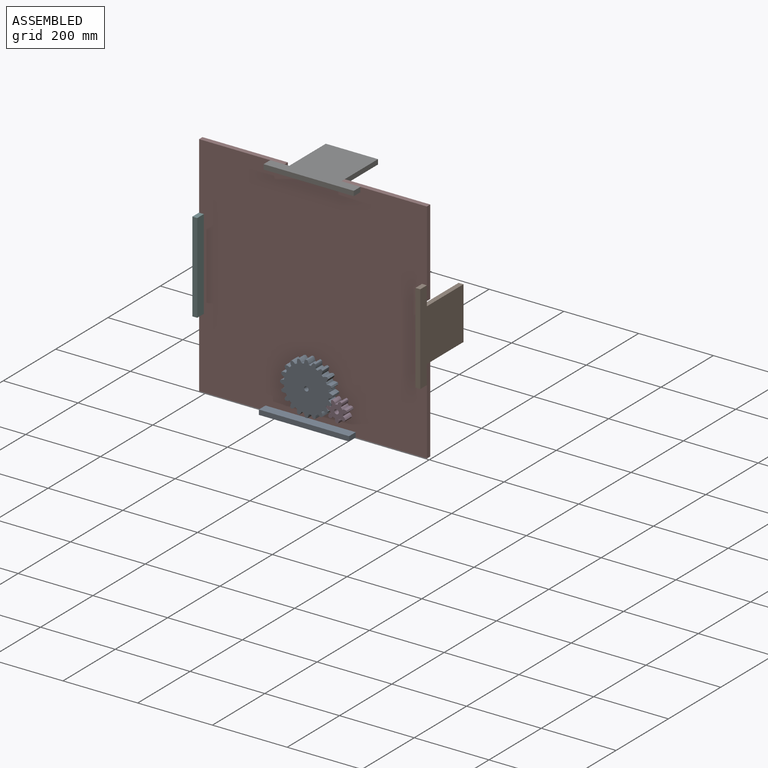
[diagram: assembled view]
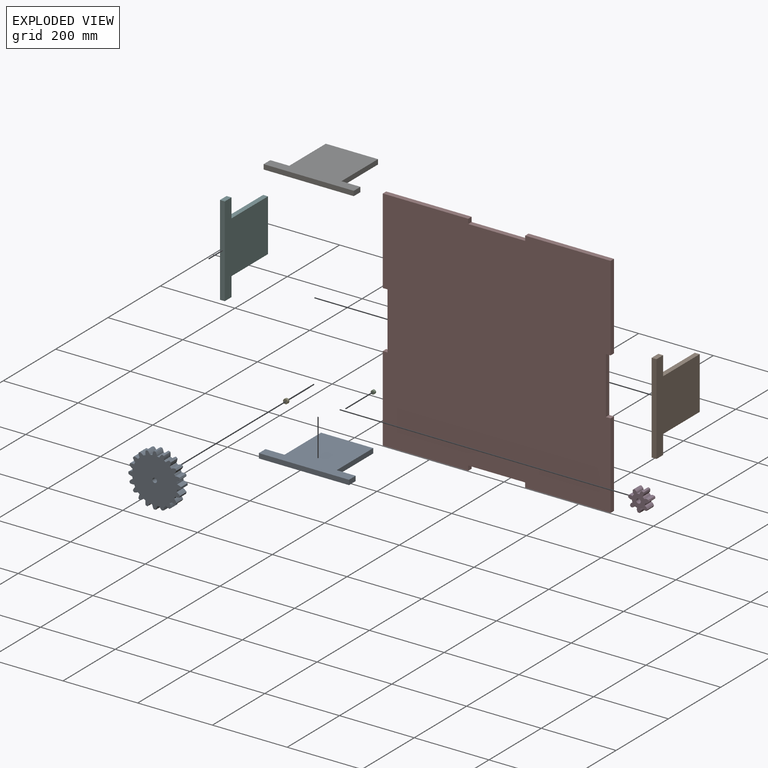
[diagram: exploded view]
GUIDED TOUR — MATED ASSEMBLY (Onshape document 7bbe39c81c4237c6e1a1eeca, AutoMate assembly 7bbe39c81c4237c6e1a1eeca_2d4af777175b77cccae2ca65_cfdbb7cd15bb9fad2b59fb86_default)

This assembly has 9 components, labeled P0..P8 below (a component is one placed occurrence of a part; the same part can appear more than once), held together by 6 mates. A mate is a constraint between two components; its type names the relative motion it leaves free:
  PLANAR — leaves sliding in the plane through the listed point (normal = the listed direction) and rotation about that normal free.
Axis/direction vectors are unit vectors and 'through' points are millimeter coordinates, both in the assembly's world frame.

MATES
  1. PLANAR "Planar 3": P1 <-> P7, direction (0.000, 1.000, 0.000) through (331.79, -6.48, -80.29) mm
  2. PLANAR "Planar 6": P3 <-> P2, direction (0.000, 1.000, 0.000) through (114.27, -6.48, -245.90) mm
  3. PLANAR "Planar 4": P8 <-> P7, direction (0.000, 1.000, 0.000) through (-42.86, -6.48, -302.54) mm
  4. PLANAR "Planar 2": P6 <-> P7, direction (0.000, 1.000, 0.000) through (109.54, -6.48, 294.36) mm
  5. PLANAR "Planar 1": P5 <-> P7, direction (0.000, 1.000, 0.000) through (-265.11, -6.48, 72.11) mm
  6. PLANAR "Planar 5": P0 <-> P4, direction (0.000, 1.000, 0.000) through (33.34, -6.48, -212.29) mm

ASSEMBLY ORDER
  1. P6 — the base component [order verified]
  2. P5 [order verified]
  3. P7 [order verified]
  4. P8 [order verified]
  5. P1 [order verified]
  6. P4 [order verified]
  7. P2 [order verified]
  8. P3 [order verified]
  9. P0 [order verified]
(P1, P8 verified with a relaxed clearance tolerance: the source model stores slight part interference there.)
Order-tag legend:
  [order verified] — this step's position reverses a verified removal order: the component was checked to insert without passing through the ones already placed.

Of the 9 components, 1 carries the full construction recipe — the FeatureScript program that regenerates the part's solid from scratch; the rest are supplied as boundary geometry only.
Each toured component is shown spotlighted twice — in the assembled view, then in the exploded view, where a leader line traces a displaced component back to its assembled socket (saturated green if recipe-attached, orange if geometry-only; every other component desaturated gray) — followed by its recipe or geometry summary and the mates that hold it.
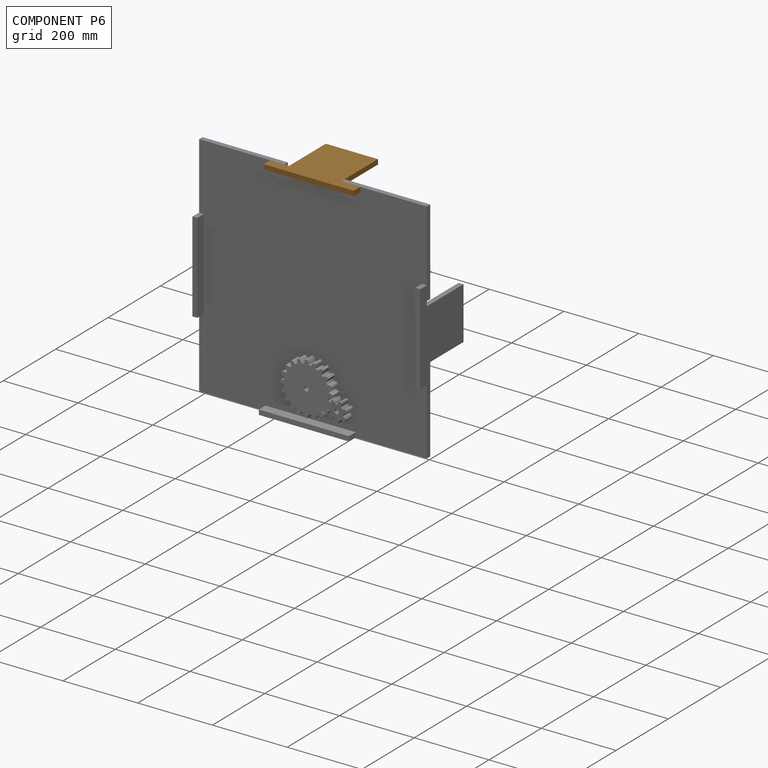
[diagram: component P6 — assembled]
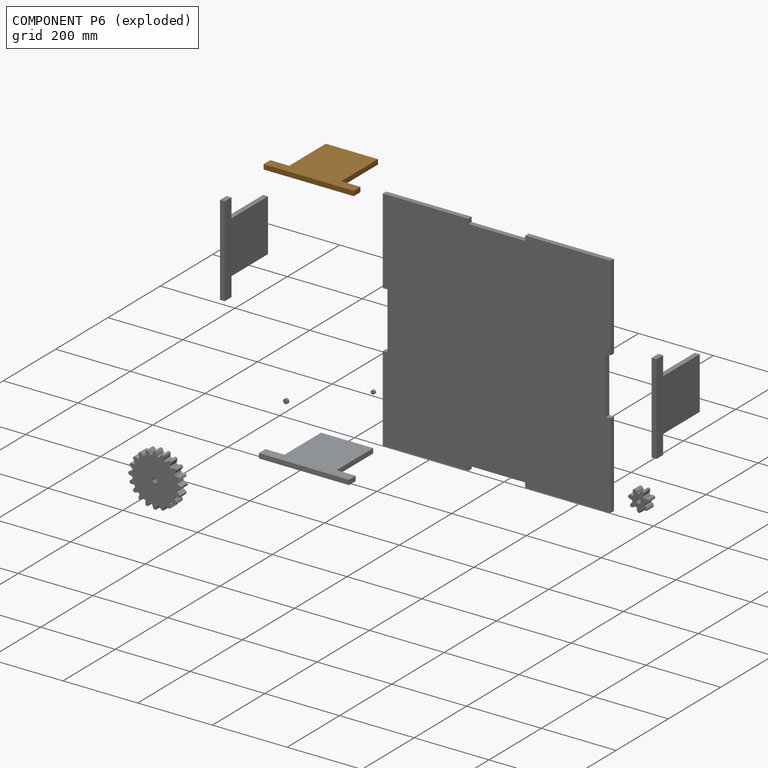
[diagram: component P6 — exploded]
COMPONENT P6 — geometry summary (no construction recipe available for this part):
  bounding box: 241.3 x 165.1 x 13.0 mm
  B-rep topology: 1 solid, 10 faces, 48 edges
  volume: 332207 mm^3 (64% of its bounding box)
  symmetry: 2-fold rotationally symmetric about the z axis; mirror-symmetric across its x mid-plane, y mid-plane
Held by: PLANAR mate "Planar 2" to P7.
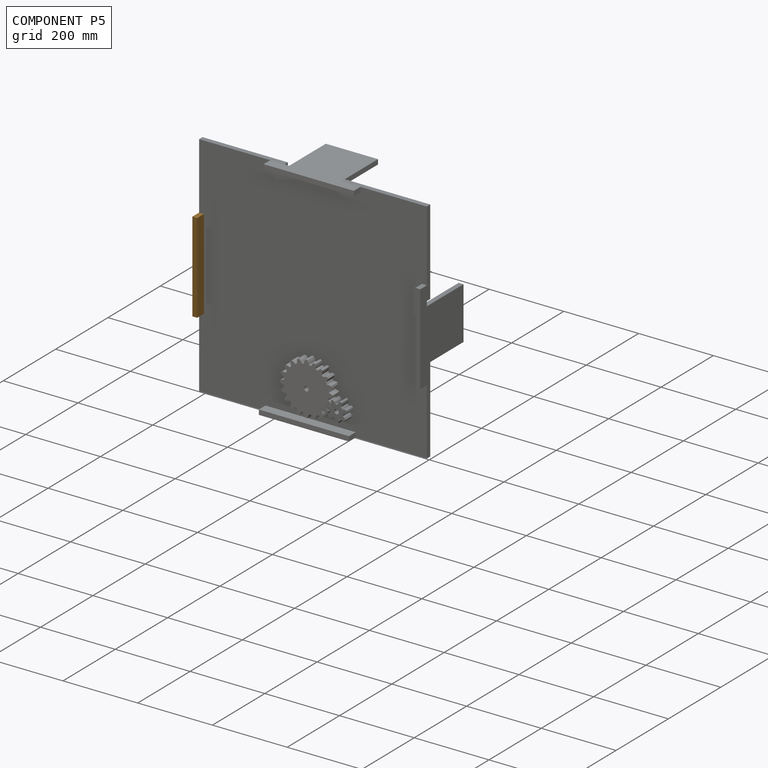
[diagram: component P5 — assembled]
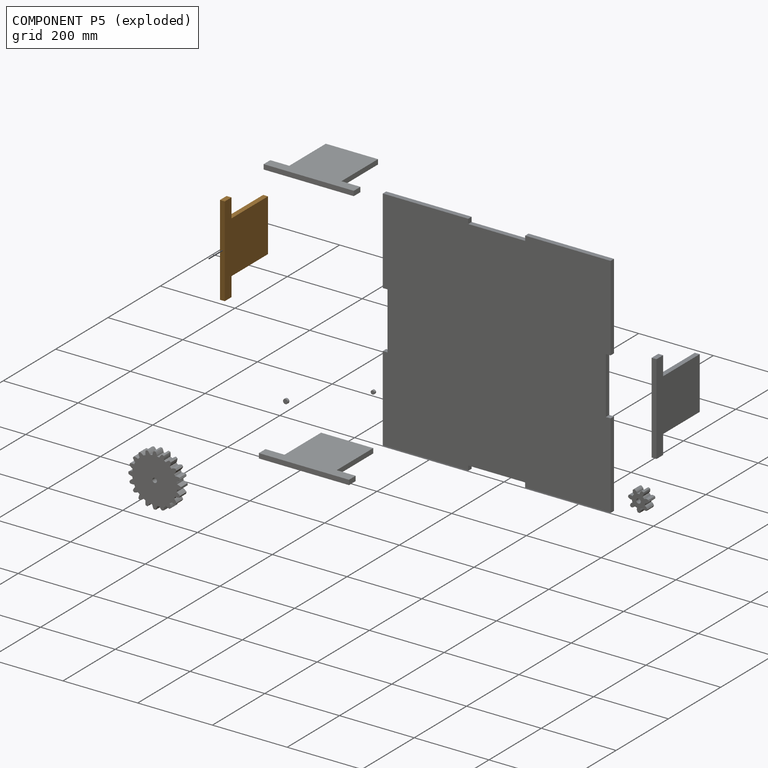
[diagram: component P5 — exploded]
COMPONENT P5 — geometry summary (no construction recipe available for this part):
  bounding box: 241.3 x 165.1 x 13.0 mm
  B-rep topology: 1 solid, 10 faces, 48 edges
  volume: 332207 mm^3 (64% of its bounding box)
  symmetry: 2-fold rotationally symmetric about the z axis; mirror-symmetric across its x mid-plane, y mid-plane
Held by: PLANAR mate "Planar 1" to P7.
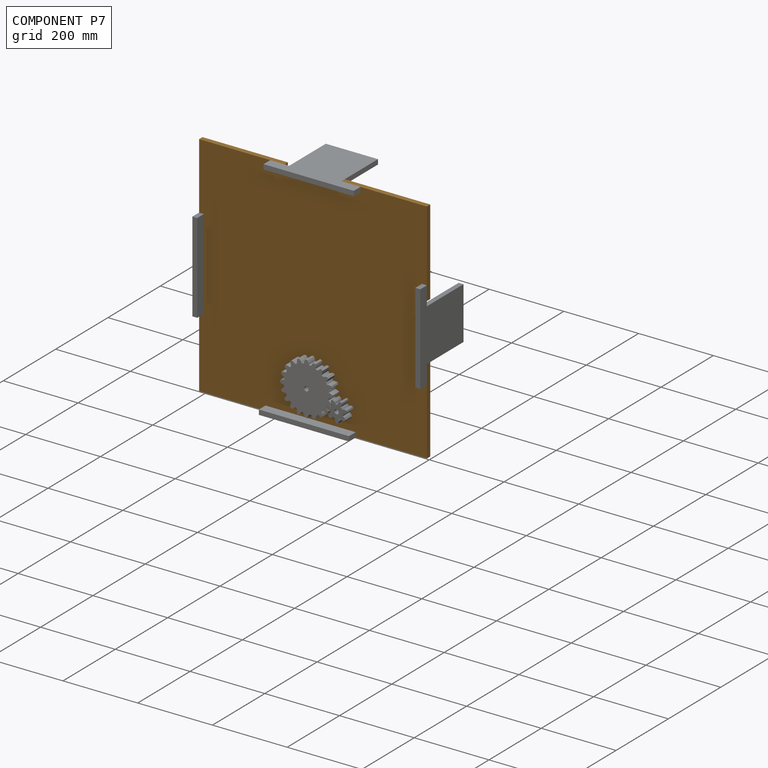
[diagram: component P7 — assembled]
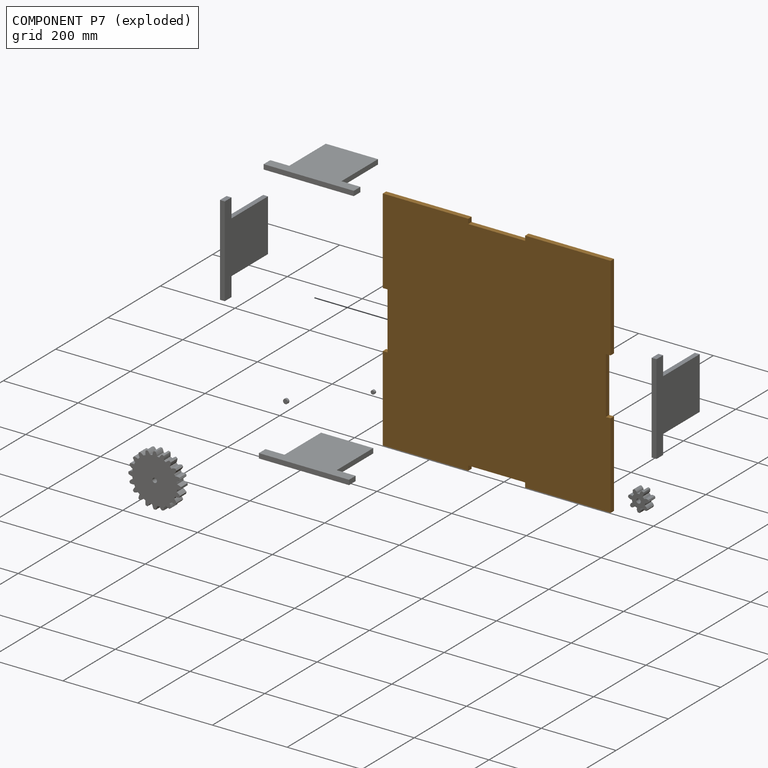
[diagram: component P7 — exploded]
COMPONENT P7 — geometry summary (no construction recipe available for this part):
  bounding box: 609.6 x 609.6 x 13.0 mm
  B-rep topology: 1 solid, 22 faces, 120 edges
  volume: 4713575 mm^3 (98% of its bounding box)
  symmetry: 2-fold rotationally symmetric about the x axis; 4-fold rotationally symmetric about the y axis; 2-fold rotationally symmetric about the z axis; mirror-symmetric across its x mid-plane, y mid-plane, z mid-plane
Held by: PLANAR mate "Planar 3" to P1; PLANAR mate "Planar 4" to P8; PLANAR mate "Planar 2" to P6; PLANAR mate "Planar 1" to P5.
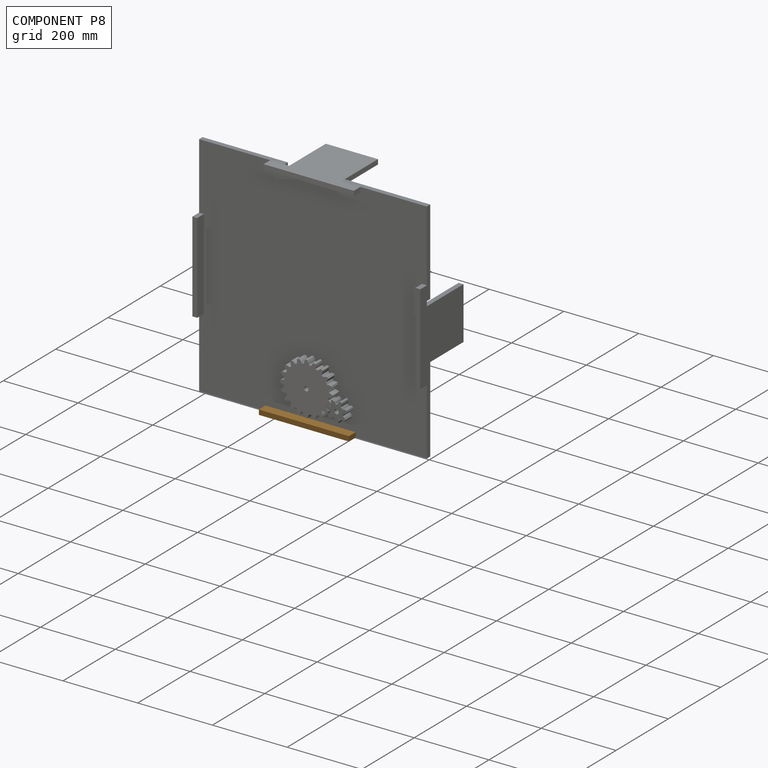
[diagram: component P8 — assembled]
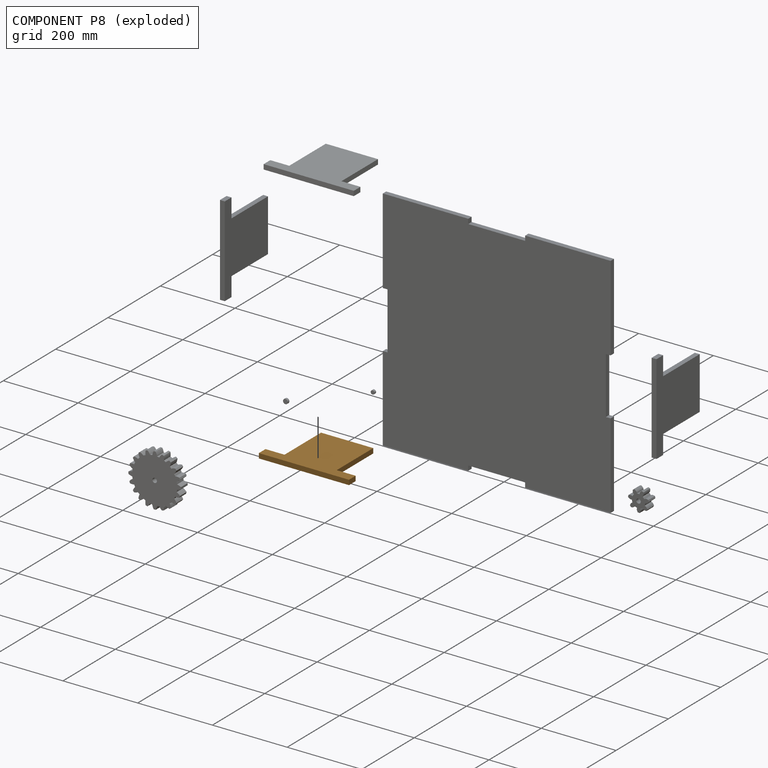
[diagram: component P8 — exploded]
COMPONENT P8 — geometry summary (no construction recipe available for this part):
  bounding box: 241.3 x 165.1 x 13.0 mm
  B-rep topology: 1 solid, 10 faces, 48 edges
  volume: 332207 mm^3 (64% of its bounding box)
  symmetry: 2-fold rotationally symmetric about the z axis; mirror-symmetric across its x mid-plane, y mid-plane
Held by: PLANAR mate "Planar 4" to P7.
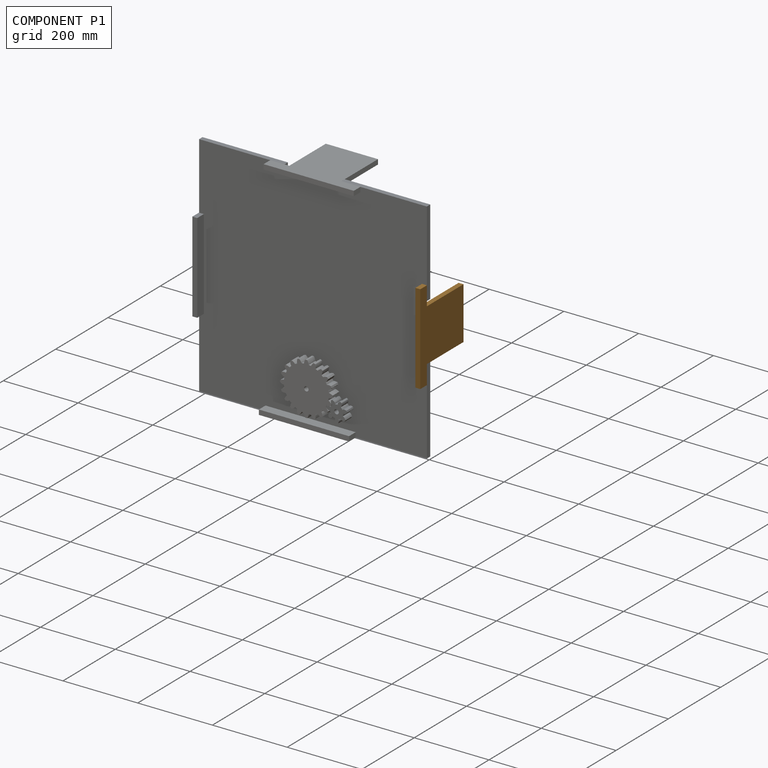
[diagram: component P1 — assembled]
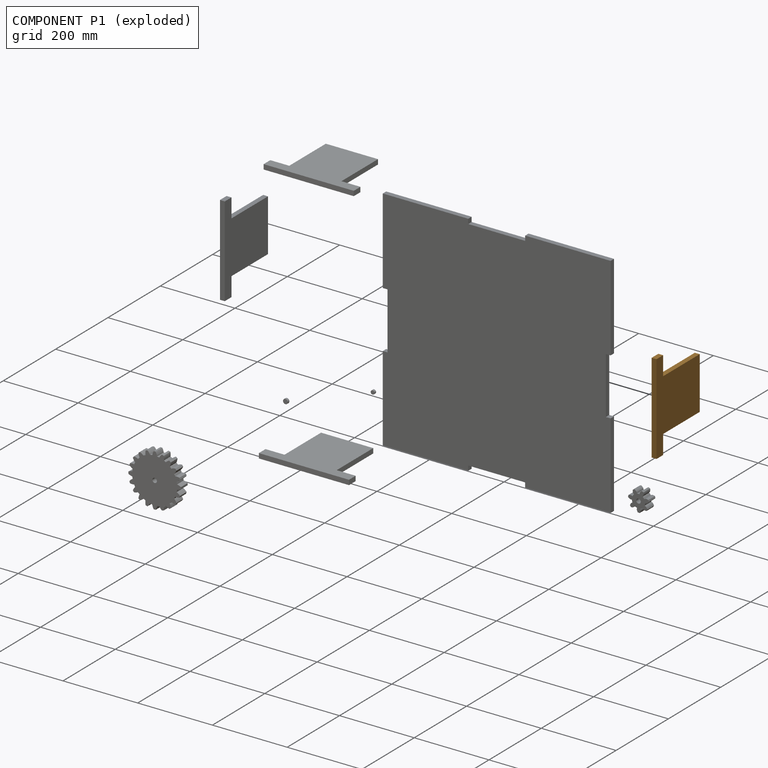
[diagram: component P1 — exploded]
COMPONENT P1 — geometry summary (no construction recipe available for this part):
  bounding box: 241.3 x 165.1 x 13.0 mm
  B-rep topology: 1 solid, 10 faces, 48 edges
  volume: 332207 mm^3 (64% of its bounding box)
  symmetry: 2-fold rotationally symmetric about the z axis; mirror-symmetric across its x mid-plane, y mid-plane
Held by: PLANAR mate "Planar 3" to P7.
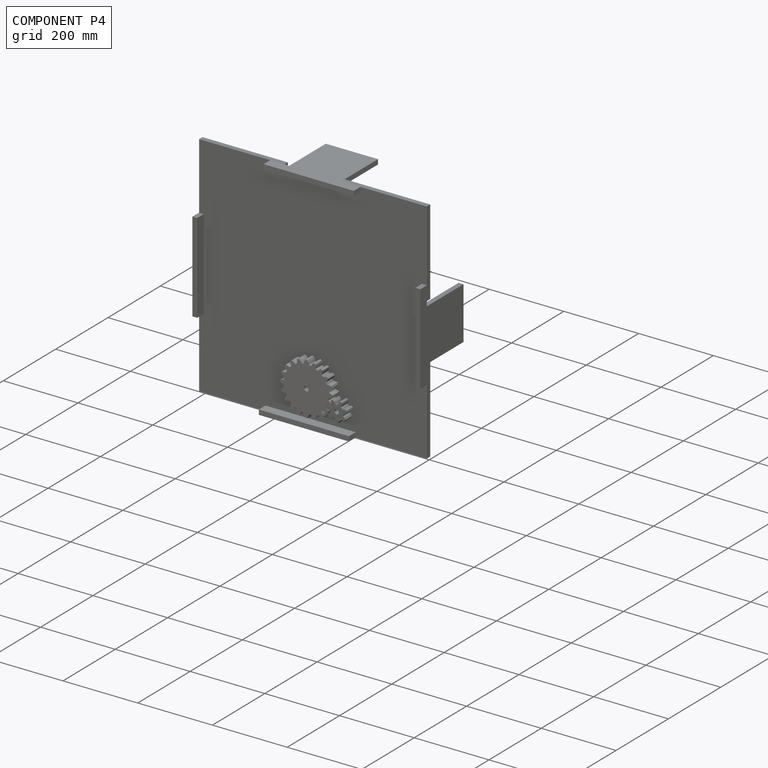
[diagram: component P4 — assembled]
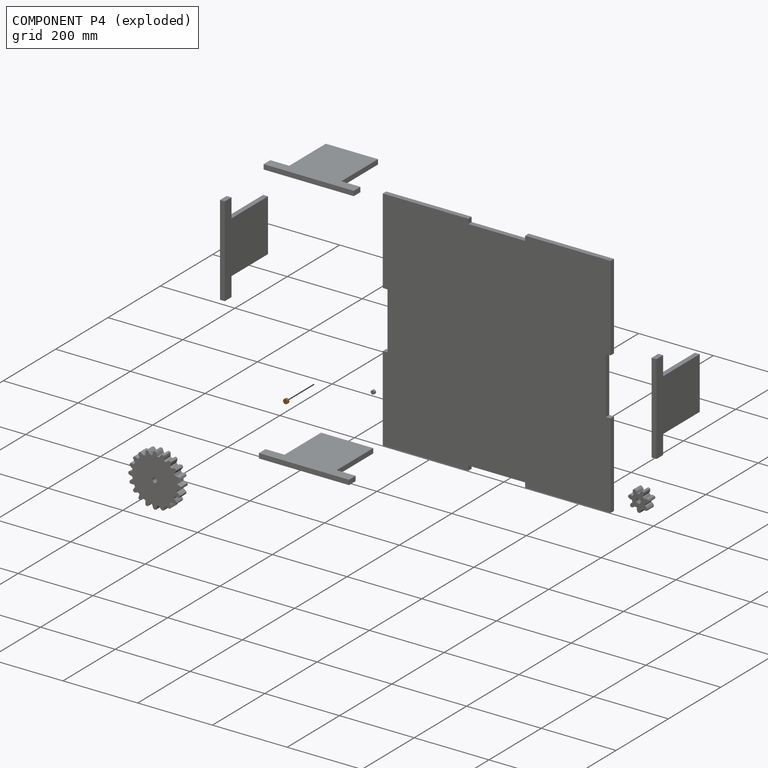
[diagram: component P4 — exploded]
COMPONENT P4 — geometry summary (no construction recipe available for this part):
  bounding box: 12.7 x 12.7 x 6.4 mm
  B-rep topology: 1 solid, 3 faces, 6 edges
  volume: 804 mm^3 (79% of its bounding box)
  symmetry: 2-fold rotationally symmetric about the x axis; revolution-symmetric about the y axis through its bounding-box center; 2-fold rotationally symmetric about the z axis; mirror-symmetric across its x mid-plane, y mid-plane, z mid-plane
Held by: PLANAR mate "Planar 5" to P0.
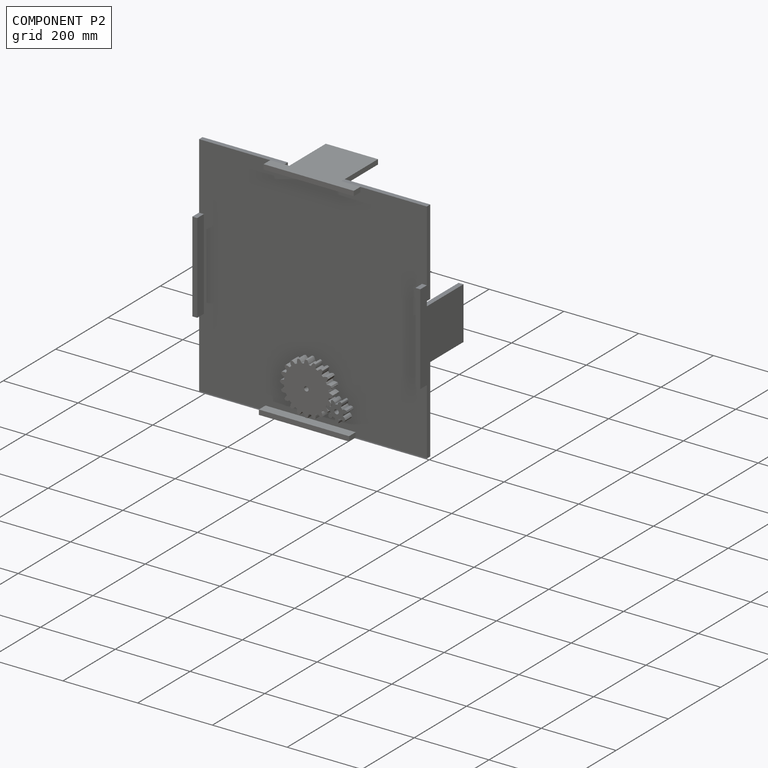
[diagram: component P2 — assembled]
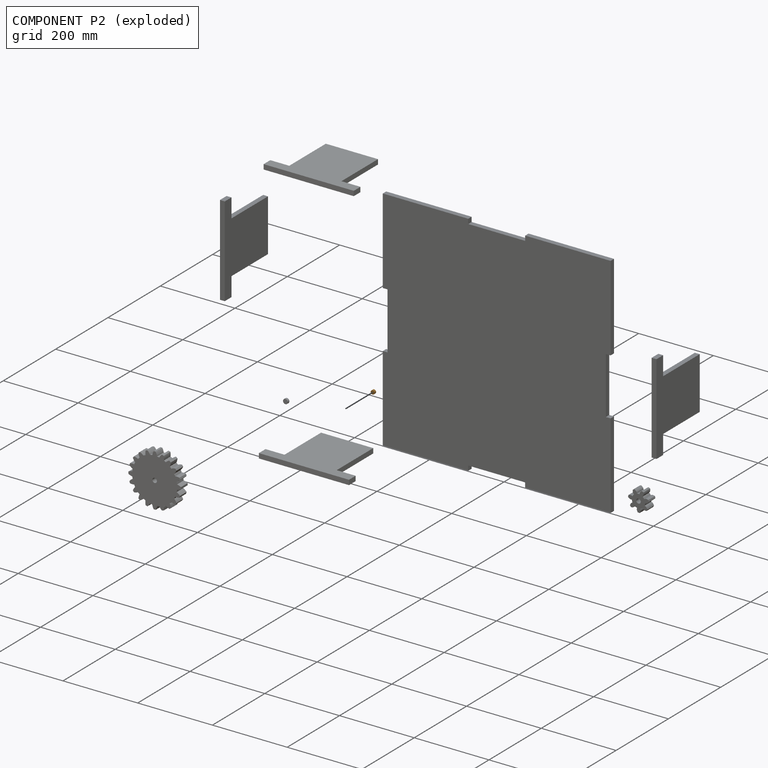
[diagram: component P2 — exploded]
COMPONENT P2 — geometry summary (no construction recipe available for this part):
  bounding box: 10.2 x 10.2 x 6.4 mm
  B-rep topology: 1 solid, 3 faces, 6 edges
  volume: 515 mm^3 (79% of its bounding box)
  symmetry: 2-fold rotationally symmetric about the x axis; revolution-symmetric about the y axis through its bounding-box center; 2-fold rotationally symmetric about the z axis; mirror-symmetric across its x mid-plane, y mid-plane, z mid-plane
Held by: PLANAR mate "Planar 6" to P3.
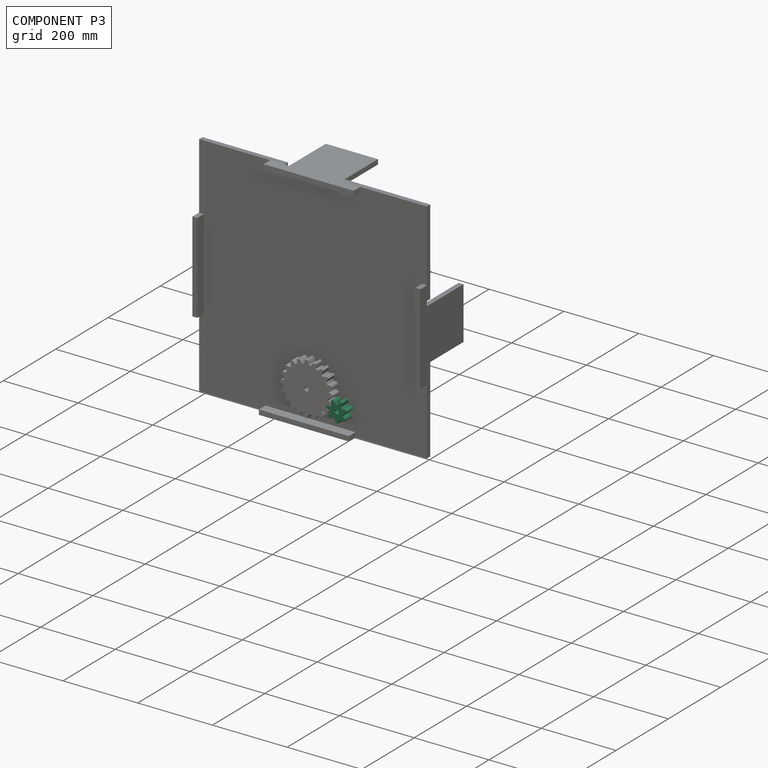
[diagram: component P3 — assembled]
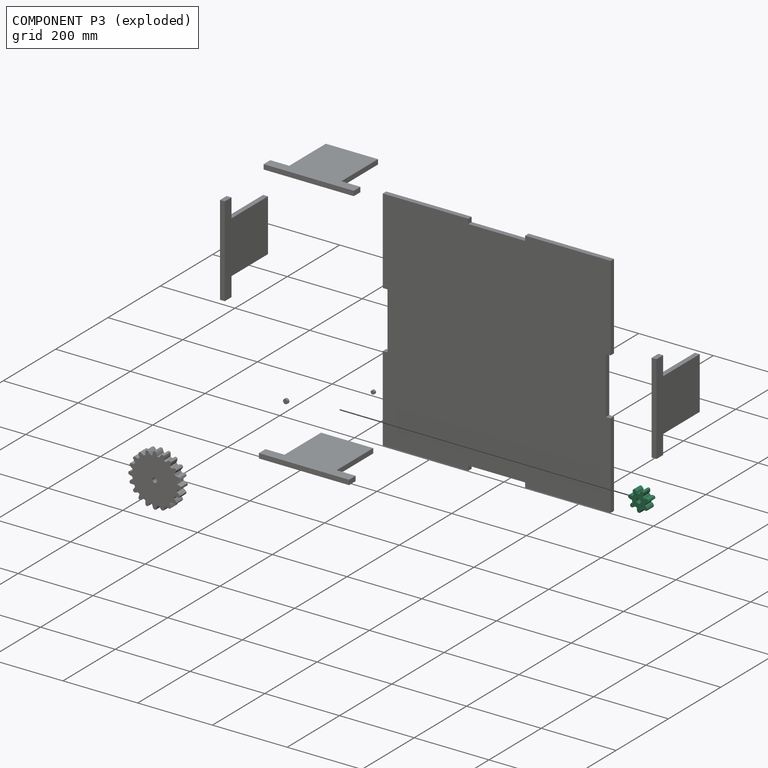
[diagram: component P3 — exploded]
COMPONENT P3 — recipe-attached (CADFS 00361780, mesh-verified: the recipe's output STEP matches this component's geometry to below the mesh-comparison resolution (tessellation chordal tolerance ~0.122 mm)).
Held by: PLANAR mate "Planar 6" to P2.
Construction recipe (FeatureScript — the CAD program that rebuilds this solid; sketch coordinates are in the units given by the * unit suffixes, e.g. mm):

FeatureScript 1511;
import(path : "onshape/std/geometry.fs", version : "1511.0");
import(path : "onshape/std/common.fs", version : "1511.0");
const mm = millimeter;
const VERTEX = EntityType.VERTEX;
const EDGE = EntityType.EDGE;
const FACE = EntityType.FACE;
const BODY = EntityType.BODY;
function v(x, y){return vector(x, y);}
function OD(order){return orderDisambiguation(order);}
function OSD(set){return originalSetDisambiguation(set);}
function TD(topology){return topologyDisambiguation(topology);}
function TDD(query){return trueDependencyDisambiguation(query);}
function sQuery(a, b, c) {return sketchEntityQuery(a, b, c);}

annotation { "Feature Type Name" : "Feature", "Feature Type Description" : "" }
export const myFeature = defineFeature(function(context is Context, id is Id, definition is map)
    precondition{}
    {
        {
            var Q0;
            Q0=qCreatedBy(makeId("Front.planeOp"),FACE);
            var sketch = newSketch(context, id + "F0", { "sketchPlane" : qUnion([Q0])});
            skLineSegment(sketch, "E0", {"start": v(-98.04, 127.68) * mm, "end": v(-97.87, 127.68) * mm});
            skLineSegment(sketch, "E1", {"start": v(5.93, 25.9) * mm, "end": v(5.93, 25.45) * mm});
            skLineSegment(sketch, "E2", {"start": v(5.93, 25.45) * mm, "end": v(5.62, 24.07) * mm});
            skLineSegment(sketch, "E3", {"start": v(5.62, 24.07) * mm, "end": v(4.93, 22.63) * mm});
            skLineSegment(sketch, "E4", {"start": v(4.93, 22.63) * mm, "end": v(4.74, 22.35) * mm});
            skLineSegment(sketch, "E5", {"start": v(4.74, 22.35) * mm, "end": v(4.55, 22.08) * mm});
            skLineSegment(sketch, "E6", {"start": v(4.55, 22.08) * mm, "end": v(3.4, 21) * mm});
            skLineSegment(sketch, "E7", {"start": v(3.4, 21) * mm, "end": v(2, 20.26) * mm});
            skLineSegment(sketch, "E8", {"start": v(2, 20.26) * mm, "end": v(1.7, 20.15) * mm});
            skLineSegment(sketch, "E9", {"start": v(1.7, 20.15) * mm, "end": v(1.37, 20.05) * mm});
            skLineSegment(sketch, "E10", {"start": v(1.37, 20.05) * mm, "end": v(-0.17, 19.83) * mm});
            skLineSegment(sketch, "E11", {"start": v(-0.17, 19.83) * mm, "end": v(-1.72, 20.05) * mm});
            skLineSegment(sketch, "E12", {"start": v(-1.72, 20.05) * mm, "end": v(-2.03, 20.15) * mm});
            skLineSegment(sketch, "E13", {"start": v(-2.03, 20.15) * mm, "end": v(-2.35, 20.26) * mm});
            skLineSegment(sketch, "E14", {"start": v(-2.35, 20.26) * mm, "end": v(-3.75, 21) * mm});
            skLineSegment(sketch, "E15", {"start": v(-3.75, 21) * mm, "end": v(-4.9, 22.08) * mm});
            skLineSegment(sketch, "E16", {"start": v(-4.9, 22.08) * mm, "end": v(-5.08, 22.35) * mm});
            skLineSegment(sketch, "E17", {"start": v(-5.08, 22.35) * mm, "end": v(-5.27, 22.63) * mm});
            skLineSegment(sketch, "E18", {"start": v(-5.27, 22.63) * mm, "end": v(-5.96, 24.07) * mm});
            skLineSegment(sketch, "E19", {"start": v(-5.96, 24.07) * mm, "end": v(-6.27, 25.45) * mm});
            skLineSegment(sketch, "E20", {"start": v(-6.27, 25.45) * mm, "end": v(-6.27, 25.9) * mm});
            skLineSegment(sketch, "E21", {"start": v(-6.27, 25.9) * mm, "end": v(-6.27, 26.37) * mm});
            skLineSegment(sketch, "E22", {"start": v(-6.27, 26.37) * mm, "end": v(-5.96, 27.75) * mm});
            skLineSegment(sketch, "E23", {"start": v(-5.96, 27.75) * mm, "end": v(-5.27, 29.2) * mm});
            skLineSegment(sketch, "E24", {"start": v(-5.27, 29.2) * mm, "end": v(-5.08, 29.46) * mm});
            skLineSegment(sketch, "E25", {"start": v(-5.08, 29.46) * mm, "end": v(-4.9, 29.74) * mm});
            skLineSegment(sketch, "E26", {"start": v(-4.9, 29.74) * mm, "end": v(-3.75, 30.82) * mm});
            skLineSegment(sketch, "E27", {"start": v(-3.75, 30.82) * mm, "end": v(-2.35, 31.56) * mm});
            skLineSegment(sketch, "E28", {"start": v(-2.35, 31.56) * mm, "end": v(-2.03, 31.67) * mm});
            skLineSegment(sketch, "E29", {"start": v(-2.03, 31.67) * mm, "end": v(-1.72, 31.77) * mm});
            skLineSegment(sketch, "E30", {"start": v(-1.72, 31.77) * mm, "end": v(-0.17, 31.98) * mm});
            skLineSegment(sketch, "E31", {"start": v(-0.17, 31.98) * mm, "end": v(1.37, 31.77) * mm});
            skLineSegment(sketch, "E32", {"start": v(1.37, 31.77) * mm, "end": v(1.7, 31.67) * mm});
            skLineSegment(sketch, "E33", {"start": v(1.7, 31.67) * mm, "end": v(2, 31.56) * mm});
            skLineSegment(sketch, "E34", {"start": v(2, 31.56) * mm, "end": v(3.4, 30.82) * mm});
            skLineSegment(sketch, "E35", {"start": v(3.4, 30.82) * mm, "end": v(4.55, 29.74) * mm});
            skLineSegment(sketch, "E36", {"start": v(4.55, 29.74) * mm, "end": v(4.74, 29.46) * mm});
            skLineSegment(sketch, "E37", {"start": v(4.74, 29.46) * mm, "end": v(4.93, 29.2) * mm});
            skLineSegment(sketch, "E38", {"start": v(4.93, 29.2) * mm, "end": v(5.62, 27.75) * mm});
            skLineSegment(sketch, "E39", {"start": v(5.62, 27.75) * mm, "end": v(5.93, 26.37) * mm});
            skLineSegment(sketch, "E40", {"start": v(5.93, 26.37) * mm, "end": v(5.93, 25.9) * mm});
            skLineSegment(sketch, "E41", {"start": v(15.83, 18.2) * mm, "end": v(17.02, 21.42) * mm});
            skLineSegment(sketch, "E42", {"start": v(17.02, 21.42) * mm, "end": v(17.44, 21.34) * mm});
            skLineSegment(sketch, "E43", {"start": v(17.44, 21.34) * mm, "end": v(17.95, 21.17) * mm});
            skLineSegment(sketch, "E44", {"start": v(17.95, 21.17) * mm, "end": v(18.46, 21) * mm});
            skLineSegment(sketch, "E45", {"start": v(18.46, 21) * mm, "end": v(18.97, 20.91) * mm});
            skLineSegment(sketch, "E46", {"start": v(18.97, 20.91) * mm, "end": v(19.47, 20.83) * mm});
            skLineSegment(sketch, "E47", {"start": v(19.47, 20.83) * mm, "end": v(19.98, 20.66) * mm});
            skLineSegment(sketch, "E48", {"start": v(19.98, 20.66) * mm, "end": v(20.49, 20.66) * mm});
            skLineSegment(sketch, "E49", {"start": v(20.49, 20.66) * mm, "end": v(21, 20.66) * mm});
            skLineSegment(sketch, "E50", {"start": v(21, 20.66) * mm, "end": v(21.6, 20.74) * mm});
            skLineSegment(sketch, "E51", {"start": v(21.6, 20.74) * mm, "end": v(22.1, 20.83) * mm});
            skLineSegment(sketch, "E52", {"start": v(22.1, 20.83) * mm, "end": v(22.69, 20.91) * mm});
            skLineSegment(sketch, "E53", {"start": v(22.69, 20.91) * mm, "end": v(23.2, 21.08) * mm});
            skLineSegment(sketch, "E54", {"start": v(23.2, 21.08) * mm, "end": v(23.8, 21.34) * mm});
            skLineSegment(sketch, "E55", {"start": v(23.8, 21.34) * mm, "end": v(24.3, 21.5) * mm});
            skLineSegment(sketch, "E56", {"start": v(24.3, 21.5) * mm, "end": v(24.9, 21.84) * mm});
            skLineSegment(sketch, "E57", {"start": v(24.9, 21.84) * mm, "end": v(25.48, 22.1) * mm});
            skLineSegment(sketch, "E58", {"start": v(25.48, 22.1) * mm, "end": v(26.08, 22.44) * mm});
            skLineSegment(sketch, "E59", {"start": v(26.08, 22.44) * mm, "end": v(26.59, 22.78) * mm});
            skLineSegment(sketch, "E60", {"start": v(26.59, 22.78) * mm, "end": v(27.18, 23.2) * mm});
            skLineSegment(sketch, "E61", {"start": v(27.18, 23.2) * mm, "end": v(27.69, 23.54) * mm});
            skLineSegment(sketch, "E62", {"start": v(27.69, 23.54) * mm, "end": v(27.69, 28.2) * mm});
            skLineSegment(sketch, "E63", {"start": v(27.69, 28.2) * mm, "end": v(27.18, 28.62) * mm});
            skLineSegment(sketch, "E64", {"start": v(27.18, 28.62) * mm, "end": v(26.59, 29.04) * mm});
            skLineSegment(sketch, "E65", {"start": v(26.59, 29.04) * mm, "end": v(26.08, 29.38) * mm});
            skLineSegment(sketch, "E66", {"start": v(26.08, 29.38) * mm, "end": v(25.48, 29.72) * mm});
            skLineSegment(sketch, "E67", {"start": v(25.48, 29.72) * mm, "end": v(24.9, 29.97) * mm});
            skLineSegment(sketch, "E68", {"start": v(24.9, 29.97) * mm, "end": v(24.3, 30.23) * mm});
            skLineSegment(sketch, "E69", {"start": v(24.3, 30.23) * mm, "end": v(23.8, 30.48) * mm});
            skLineSegment(sketch, "E70", {"start": v(23.8, 30.48) * mm, "end": v(23.2, 30.65) * mm});
            skLineSegment(sketch, "E71", {"start": v(23.2, 30.65) * mm, "end": v(22.69, 30.82) * mm});
            skLineSegment(sketch, "E72", {"start": v(22.69, 30.82) * mm, "end": v(22.1, 30.99) * mm});
            skLineSegment(sketch, "E73", {"start": v(22.1, 30.99) * mm, "end": v(21.6, 31.07) * mm});
            skLineSegment(sketch, "E74", {"start": v(21.6, 31.07) * mm, "end": v(21, 31.16) * mm});
            skLineSegment(sketch, "E75", {"start": v(21, 31.16) * mm, "end": v(20.49, 31.16) * mm});
            skLineSegment(sketch, "E76", {"start": v(20.49, 31.16) * mm, "end": v(19.98, 31.16) * mm});
            skLineSegment(sketch, "E77", {"start": v(19.98, 31.16) * mm, "end": v(19.47, 30.99) * mm});
            skLineSegment(sketch, "E78", {"start": v(19.47, 30.99) * mm, "end": v(18.97, 30.82) * mm});
            skLineSegment(sketch, "E79", {"start": v(18.97, 30.82) * mm, "end": v(18.46, 30.73) * mm});
            skLineSegment(sketch, "E80", {"start": v(18.46, 30.73) * mm, "end": v(17.95, 30.65) * mm});
            skLineSegment(sketch, "E81", {"start": v(17.95, 30.65) * mm, "end": v(17.44, 30.48) * mm});
            skLineSegment(sketch, "E82", {"start": v(17.44, 30.48) * mm, "end": v(17.02, 30.31) * mm});
            skLineSegment(sketch, "E83", {"start": v(17.02, 30.31) * mm, "end": v(15.83, 33.61) * mm});
            skLineSegment(sketch, "E84", {"start": v(15.83, 33.61) * mm, "end": v(14.06, 36.5) * mm});
            skLineSegment(sketch, "E85", {"start": v(14.06, 36.5) * mm, "end": v(14.4, 36.83) * mm});
            skLineSegment(sketch, "E86", {"start": v(14.4, 36.83) * mm, "end": v(14.82, 37.17) * mm});
            skLineSegment(sketch, "E87", {"start": v(14.82, 37.17) * mm, "end": v(15.24, 37.42) * mm});
            skLineSegment(sketch, "E88", {"start": v(15.24, 37.42) * mm, "end": v(15.66, 37.76) * mm});
            skLineSegment(sketch, "E89", {"start": v(15.66, 37.76) * mm, "end": v(16.09, 38.02) * mm});
            skLineSegment(sketch, "E90", {"start": v(16.09, 38.02) * mm, "end": v(16.43, 38.35) * mm});
            skLineSegment(sketch, "E91", {"start": v(16.43, 38.35) * mm, "end": v(16.85, 38.78) * mm});
            skLineSegment(sketch, "E92", {"start": v(16.85, 38.78) * mm, "end": v(17.19, 39.2) * mm});
            skLineSegment(sketch, "E93", {"start": v(17.19, 39.2) * mm, "end": v(17.44, 39.62) * mm});
            skLineSegment(sketch, "E94", {"start": v(17.44, 39.62) * mm, "end": v(17.7, 40.13) * mm});
            skLineSegment(sketch, "E95", {"start": v(17.7, 40.13) * mm, "end": v(17.95, 40.64) * mm});
            skLineSegment(sketch, "E96", {"start": v(17.95, 40.64) * mm, "end": v(18.12, 41.23) * mm});
            skLineSegment(sketch, "E97", {"start": v(18.12, 41.23) * mm, "end": v(18.37, 41.74) * mm});
            skLineSegment(sketch, "E98", {"start": v(18.37, 41.74) * mm, "end": v(18.54, 42.33) * mm});
            skLineSegment(sketch, "E99", {"start": v(18.54, 42.33) * mm, "end": v(18.63, 42.93) * mm});
            skLineSegment(sketch, "E100", {"start": v(18.63, 42.93) * mm, "end": v(18.8, 43.6) * mm});
            skLineSegment(sketch, "E101", {"start": v(18.8, 43.6) * mm, "end": v(18.88, 44.2) * mm});
            skLineSegment(sketch, "E102", {"start": v(18.88, 44.2) * mm, "end": v(18.97, 44.87) * mm});
            skLineSegment(sketch, "E103", {"start": v(18.97, 44.87) * mm, "end": v(18.97, 45.55) * mm});
            skLineSegment(sketch, "E104", {"start": v(18.97, 45.55) * mm, "end": v(19.05, 46.23) * mm});
            skLineSegment(sketch, "E105", {"start": v(19.05, 46.23) * mm, "end": v(15.4, 49.1) * mm});
            skLineSegment(sketch, "E106", {"start": v(15.4, 49.1) * mm, "end": v(14.73, 48.94) * mm});
            skLineSegment(sketch, "E107", {"start": v(14.73, 48.94) * mm, "end": v(14.06, 48.77) * mm});
            skLineSegment(sketch, "E108", {"start": v(14.06, 48.77) * mm, "end": v(13.46, 48.51) * mm});
            skLineSegment(sketch, "E109", {"start": v(13.46, 48.51) * mm, "end": v(12.87, 48.26) * mm});
            skLineSegment(sketch, "E110", {"start": v(12.87, 48.26) * mm, "end": v(12.28, 48.1) * mm});
            skLineSegment(sketch, "E111", {"start": v(12.28, 48.1) * mm, "end": v(11.68, 47.75) * mm});
            skLineSegment(sketch, "E112", {"start": v(11.68, 47.75) * mm, "end": v(11.18, 47.5) * mm});
            skLineSegment(sketch, "E113", {"start": v(11.18, 47.5) * mm, "end": v(10.67, 47.16) * mm});
            skLineSegment(sketch, "E114", {"start": v(10.67, 47.16) * mm, "end": v(10.16, 46.82) * mm});
            skLineSegment(sketch, "E115", {"start": v(10.16, 46.82) * mm, "end": v(9.74, 46.48) * mm});
            skLineSegment(sketch, "E116", {"start": v(9.74, 46.48) * mm, "end": v(9.31, 46.14) * mm});
            skLineSegment(sketch, "E117", {"start": v(9.31, 46.14) * mm, "end": v(8.97, 45.72) * mm});
            skLineSegment(sketch, "E118", {"start": v(8.97, 45.72) * mm, "end": v(8.55, 45.3) * mm});
            skLineSegment(sketch, "E119", {"start": v(8.55, 45.3) * mm, "end": v(8.3, 44.87) * mm});
            skLineSegment(sketch, "E120", {"start": v(8.3, 44.87) * mm, "end": v(8.04, 44.45) * mm});
            skLineSegment(sketch, "E121", {"start": v(8.04, 44.45) * mm, "end": v(7.87, 43.94) * mm});
            skLineSegment(sketch, "E122", {"start": v(7.87, 43.94) * mm, "end": v(7.7, 43.52) * mm});
            skLineSegment(sketch, "E123", {"start": v(7.7, 43.52) * mm, "end": v(7.45, 43.01) * mm});
            skLineSegment(sketch, "E124", {"start": v(7.45, 43.01) * mm, "end": v(7.28, 42.59) * mm});
            skLineSegment(sketch, "E125", {"start": v(7.28, 42.59) * mm, "end": v(7.03, 42.08) * mm});
            skLineSegment(sketch, "E126", {"start": v(7.03, 42.08) * mm, "end": v(3.8, 43.18) * mm});
            skLineSegment(sketch, "E127", {"start": v(3.8, 43.18) * mm, "end": v(0.34, 43.6) * mm});
            skLineSegment(sketch, "E128", {"start": v(0.34, 43.6) * mm, "end": v(0.34, 44.11) * mm});
            skLineSegment(sketch, "E129", {"start": v(0.34, 44.11) * mm, "end": v(0.42, 44.62) * mm});
            skLineSegment(sketch, "E130", {"start": v(0.42, 44.62) * mm, "end": v(0.42, 45.13) * mm});
            skLineSegment(sketch, "E131", {"start": v(0.42, 45.13) * mm, "end": v(0.42, 45.64) * mm});
            skLineSegment(sketch, "E132", {"start": v(0.42, 45.64) * mm, "end": v(0.42, 46.14) * mm});
            skLineSegment(sketch, "E133", {"start": v(0.42, 46.14) * mm, "end": v(0.42, 46.65) * mm});
            skLineSegment(sketch, "E134", {"start": v(0.42, 46.65) * mm, "end": v(0.34, 47.16) * mm});
            skLineSegment(sketch, "E135", {"start": v(0.34, 47.16) * mm, "end": v(0.25, 47.67) * mm});
            skLineSegment(sketch, "E136", {"start": v(0.25, 47.67) * mm, "end": v(0.08, 48.26) * mm});
            skLineSegment(sketch, "E137", {"start": v(0.08, 48.26) * mm, "end": v(-0.17, 48.77) * mm});
            skLineSegment(sketch, "E138", {"start": v(-0.17, 48.77) * mm, "end": v(-0.42, 49.28) * mm});
            skLineSegment(sketch, "E139", {"start": v(-0.42, 49.28) * mm, "end": v(-0.68, 49.78) * mm});
            skLineSegment(sketch, "E140", {"start": v(-0.68, 49.78) * mm, "end": v(-1.02, 50.3) * mm});
            skLineSegment(sketch, "E141", {"start": v(-1.02, 50.3) * mm, "end": v(-1.36, 50.8) * mm});
            skLineSegment(sketch, "E142", {"start": v(-1.36, 50.8) * mm, "end": v(-1.78, 51.22) * mm});
            skLineSegment(sketch, "E143", {"start": v(-1.78, 51.22) * mm, "end": v(-2.2, 51.73) * mm});
            skLineSegment(sketch, "E144", {"start": v(-2.2, 51.73) * mm, "end": v(-2.62, 52.24) * mm});
            skLineSegment(sketch, "E145", {"start": v(-2.62, 52.24) * mm, "end": v(-3.05, 52.66) * mm});
            skLineSegment(sketch, "E146", {"start": v(-3.05, 52.66) * mm, "end": v(-3.56, 53.17) * mm});
            skLineSegment(sketch, "E147", {"start": v(-3.56, 53.17) * mm, "end": v(-4.06, 53.6) * mm});
            skLineSegment(sketch, "E148", {"start": v(-4.06, 53.6) * mm, "end": v(-8.64, 52.58) * mm});
            skLineSegment(sketch, "E149", {"start": v(-8.64, 52.58) * mm, "end": v(-8.9, 51.9) * mm});
            skLineSegment(sketch, "E150", {"start": v(-8.9, 51.9) * mm, "end": v(-9.14, 51.3) * mm});
            skLineSegment(sketch, "E151", {"start": v(-9.14, 51.3) * mm, "end": v(-9.4, 50.63) * mm});
            skLineSegment(sketch, "E152", {"start": v(-9.4, 50.63) * mm, "end": v(-9.57, 50.04) * mm});
            skLineSegment(sketch, "E153", {"start": v(-9.57, 50.04) * mm, "end": v(-9.74, 49.44) * mm});
            skLineSegment(sketch, "E154", {"start": v(-9.74, 49.44) * mm, "end": v(-9.9, 48.85) * mm});
            skLineSegment(sketch, "E155", {"start": v(-9.9, 48.85) * mm, "end": v(-10, 48.26) * mm});
            skLineSegment(sketch, "E156", {"start": v(-10, 48.26) * mm, "end": v(-10, 47.67) * mm});
            skLineSegment(sketch, "E157", {"start": v(-10, 47.67) * mm, "end": v(-10.08, 47.07) * mm});
            skLineSegment(sketch, "E158", {"start": v(-10.08, 47.07) * mm, "end": v(-10.08, 46.48) * mm});
            skLineSegment(sketch, "E159", {"start": v(-10.08, 46.48) * mm, "end": v(-10.08, 45.89) * mm});
            skLineSegment(sketch, "E160", {"start": v(-10.08, 45.89) * mm, "end": v(-10, 45.38) * mm});
            skLineSegment(sketch, "E161", {"start": v(-10, 45.38) * mm, "end": v(-9.9, 44.87) * mm});
            skLineSegment(sketch, "E162", {"start": v(-9.9, 44.87) * mm, "end": v(-9.74, 44.37) * mm});
            skLineSegment(sketch, "E163", {"start": v(-9.74, 44.37) * mm, "end": v(-9.48, 43.86) * mm});
            skLineSegment(sketch, "E164", {"start": v(-9.48, 43.86) * mm, "end": v(-9.31, 43.43) * mm});
            skLineSegment(sketch, "E165", {"start": v(-9.31, 43.43) * mm, "end": v(-9.06, 43.01) * mm});
            skLineSegment(sketch, "E166", {"start": v(-9.06, 43.01) * mm, "end": v(-8.8, 42.5) * mm});
            skLineSegment(sketch, "E167", {"start": v(-8.8, 42.5) * mm, "end": v(-8.55, 42.08) * mm});
            skLineSegment(sketch, "E168", {"start": v(-8.55, 42.08) * mm, "end": v(-8.3, 41.66) * mm});
            skLineSegment(sketch, "E169", {"start": v(-8.3, 41.66) * mm, "end": v(-11.26, 39.7) * mm});
            skLineSegment(sketch, "E170", {"start": v(-11.26, 39.7) * mm, "end": v(-13.72, 37.34) * mm});
            skLineSegment(sketch, "E171", {"start": v(-13.72, 37.34) * mm, "end": v(-14.06, 37.68) * mm});
            skLineSegment(sketch, "E172", {"start": v(-14.06, 37.68) * mm, "end": v(-14.48, 38.02) * mm});
            skLineSegment(sketch, "E173", {"start": v(-14.48, 38.02) * mm, "end": v(-14.9, 38.35) * mm});
            skLineSegment(sketch, "E174", {"start": v(-14.9, 38.35) * mm, "end": v(-15.24, 38.7) * mm});
            skLineSegment(sketch, "E175", {"start": v(-15.24, 38.7) * mm, "end": v(-15.66, 39.03) * mm});
            skLineSegment(sketch, "E176", {"start": v(-15.66, 39.03) * mm, "end": v(-16, 39.37) * mm});
            skLineSegment(sketch, "E177", {"start": v(-16, 39.37) * mm, "end": v(-16.5, 39.62) * mm});
            skLineSegment(sketch, "E178", {"start": v(-16.5, 39.62) * mm, "end": v(-17.02, 39.8) * mm});
            skLineSegment(sketch, "E179", {"start": v(-17.02, 39.8) * mm, "end": v(-17.53, 39.96) * mm});
            skLineSegment(sketch, "E180", {"start": v(-17.53, 39.96) * mm, "end": v(-18.03, 40.13) * mm});
            skLineSegment(sketch, "E181", {"start": v(-18.03, 40.13) * mm, "end": v(-18.63, 40.22) * mm});
            skLineSegment(sketch, "E182", {"start": v(-18.63, 40.22) * mm, "end": v(-19.13, 40.39) * mm});
            skLineSegment(sketch, "E183", {"start": v(-19.13, 40.39) * mm, "end": v(-19.81, 40.39) * mm});
            skLineSegment(sketch, "E184", {"start": v(-19.81, 40.39) * mm, "end": v(-20.4, 40.47) * mm});
            skLineSegment(sketch, "E185", {"start": v(-20.4, 40.47) * mm, "end": v(-21, 40.47) * mm});
            skLineSegment(sketch, "E186", {"start": v(-21, 40.47) * mm, "end": v(-21.6, 40.47) * mm});
            skLineSegment(sketch, "E187", {"start": v(-21.6, 40.47) * mm, "end": v(-22.27, 40.39) * mm});
            skLineSegment(sketch, "E188", {"start": v(-22.27, 40.39) * mm, "end": v(-22.95, 40.3) * mm});
            skLineSegment(sketch, "E189", {"start": v(-22.95, 40.3) * mm, "end": v(-23.62, 40.22) * mm});
            skLineSegment(sketch, "E190", {"start": v(-23.62, 40.22) * mm, "end": v(-24.3, 40.13) * mm});
            skLineSegment(sketch, "E191", {"start": v(-24.3, 40.13) * mm, "end": v(-26.33, 35.9) * mm});
            skLineSegment(sketch, "E192", {"start": v(-26.33, 35.9) * mm, "end": v(-26, 35.3) * mm});
            skLineSegment(sketch, "E193", {"start": v(-26, 35.3) * mm, "end": v(-25.65, 34.71) * mm});
            skLineSegment(sketch, "E194", {"start": v(-25.65, 34.71) * mm, "end": v(-25.32, 34.12) * mm});
            skLineSegment(sketch, "E195", {"start": v(-25.32, 34.12) * mm, "end": v(-24.9, 33.61) * mm});
            skLineSegment(sketch, "E196", {"start": v(-24.9, 33.61) * mm, "end": v(-24.55, 33.1) * mm});
            skLineSegment(sketch, "E197", {"start": v(-24.55, 33.1) * mm, "end": v(-24.13, 32.6) * mm});
            skLineSegment(sketch, "E198", {"start": v(-24.13, 32.6) * mm, "end": v(-23.7, 32.17) * mm});
            skLineSegment(sketch, "E199", {"start": v(-23.7, 32.17) * mm, "end": v(-23.28, 31.75) * mm});
            skLineSegment(sketch, "E200", {"start": v(-23.28, 31.75) * mm, "end": v(-22.86, 31.33) * mm});
            skLineSegment(sketch, "E201", {"start": v(-22.86, 31.33) * mm, "end": v(-22.44, 30.99) * mm});
            skLineSegment(sketch, "E202", {"start": v(-22.44, 30.99) * mm, "end": v(-22.01, 30.65) * mm});
            skLineSegment(sketch, "E203", {"start": v(-22.01, 30.65) * mm, "end": v(-21.5, 30.31) * mm});
            skLineSegment(sketch, "E204", {"start": v(-21.5, 30.31) * mm, "end": v(-21.08, 30.14) * mm});
            skLineSegment(sketch, "E205", {"start": v(-21.08, 30.14) * mm, "end": v(-20.57, 29.89) * mm});
            skLineSegment(sketch, "E206", {"start": v(-20.57, 29.89) * mm, "end": v(-20.07, 29.8) * mm});
            skLineSegment(sketch, "E207", {"start": v(-20.07, 29.8) * mm, "end": v(-19.56, 29.72) * mm});
            skLineSegment(sketch, "E208", {"start": v(-19.56, 29.72) * mm, "end": v(-19.05, 29.63) * mm});
            skLineSegment(sketch, "E209", {"start": v(-19.05, 29.63) * mm, "end": v(-18.54, 29.55) * mm});
            skLineSegment(sketch, "E210", {"start": v(-18.54, 29.55) * mm, "end": v(-18.03, 29.38) * mm});
            skLineSegment(sketch, "E211", {"start": v(-18.03, 29.38) * mm, "end": v(-17.53, 29.3) * mm});
            skLineSegment(sketch, "E212", {"start": v(-17.53, 29.3) * mm, "end": v(-17.86, 25.9) * mm});
            skLineSegment(sketch, "E213", {"start": v(-17.86, 25.9) * mm, "end": v(-17.53, 22.44) * mm});
            skLineSegment(sketch, "E214", {"start": v(-17.53, 22.44) * mm, "end": v(-18.03, 22.35) * mm});
            skLineSegment(sketch, "E215", {"start": v(-18.03, 22.35) * mm, "end": v(-18.54, 22.27) * mm});
            skLineSegment(sketch, "E216", {"start": v(-18.54, 22.27) * mm, "end": v(-19.05, 22.18) * mm});
            skLineSegment(sketch, "E217", {"start": v(-19.05, 22.18) * mm, "end": v(-19.56, 22.1) * mm});
            skLineSegment(sketch, "E218", {"start": v(-19.56, 22.1) * mm, "end": v(-20.07, 21.93) * mm});
            skLineSegment(sketch, "E219", {"start": v(-20.07, 21.93) * mm, "end": v(-20.57, 21.84) * mm});
            skLineSegment(sketch, "E220", {"start": v(-20.57, 21.84) * mm, "end": v(-21.08, 21.67) * mm});
            skLineSegment(sketch, "E221", {"start": v(-21.08, 21.67) * mm, "end": v(-21.5, 21.42) * mm});
            skLineSegment(sketch, "E222", {"start": v(-21.5, 21.42) * mm, "end": v(-22.01, 21.17) * mm});
            skLineSegment(sketch, "E223", {"start": v(-22.01, 21.17) * mm, "end": v(-22.44, 20.83) * mm});
            skLineSegment(sketch, "E224", {"start": v(-22.44, 20.83) * mm, "end": v(-22.86, 20.49) * mm});
            skLineSegment(sketch, "E225", {"start": v(-22.86, 20.49) * mm, "end": v(-23.28, 20.07) * mm});
            skLineSegment(sketch, "E226", {"start": v(-23.28, 20.07) * mm, "end": v(-23.7, 19.64) * mm});
            skLineSegment(sketch, "E227", {"start": v(-23.7, 19.64) * mm, "end": v(-24.13, 19.13) * mm});
            skLineSegment(sketch, "E228", {"start": v(-24.13, 19.13) * mm, "end": v(-24.55, 18.71) * mm});
            skLineSegment(sketch, "E229", {"start": v(-24.55, 18.71) * mm, "end": v(-24.9, 18.2) * mm});
            skLineSegment(sketch, "E230", {"start": v(-24.9, 18.2) * mm, "end": v(-25.32, 17.61) * mm});
            skLineSegment(sketch, "E231", {"start": v(-25.32, 17.61) * mm, "end": v(-25.65, 17.1) * mm});
            skLineSegment(sketch, "E232", {"start": v(-25.65, 17.1) * mm, "end": v(-26, 16.5) * mm});
            skLineSegment(sketch, "E233", {"start": v(-26, 16.5) * mm, "end": v(-26.33, 15.92) * mm});
            skLineSegment(sketch, "E234", {"start": v(-26.33, 15.92) * mm, "end": v(-24.3, 11.68) * mm});
            skLineSegment(sketch, "E235", {"start": v(-24.3, 11.68) * mm, "end": v(-23.62, 11.6) * mm});
            skLineSegment(sketch, "E236", {"start": v(-23.62, 11.6) * mm, "end": v(-22.95, 11.43) * mm});
            skLineSegment(sketch, "E237", {"start": v(-22.95, 11.43) * mm, "end": v(-22.27, 11.43) * mm});
            skLineSegment(sketch, "E238", {"start": v(-22.27, 11.43) * mm, "end": v(-21.6, 11.34) * mm});
            skLineSegment(sketch, "E239", {"start": v(-21.6, 11.34) * mm, "end": v(-21, 11.34) * mm});
            skLineSegment(sketch, "E240", {"start": v(-21, 11.34) * mm, "end": v(-20.4, 11.34) * mm});
            skLineSegment(sketch, "E241", {"start": v(-20.4, 11.34) * mm, "end": v(-19.81, 11.34) * mm});
            skLineSegment(sketch, "E242", {"start": v(-19.81, 11.34) * mm, "end": v(-19.13, 11.43) * mm});
            skLineSegment(sketch, "E243", {"start": v(-19.13, 11.43) * mm, "end": v(-18.63, 11.51) * mm});
            skLineSegment(sketch, "E244", {"start": v(-18.63, 11.51) * mm, "end": v(-18.03, 11.6) * mm});
            skLineSegment(sketch, "E245", {"start": v(-18.03, 11.6) * mm, "end": v(-17.53, 11.77) * mm});
            skLineSegment(sketch, "E246", {"start": v(-17.53, 11.77) * mm, "end": v(-17.02, 11.94) * mm});
            skLineSegment(sketch, "E247", {"start": v(-17.02, 11.94) * mm, "end": v(-16.5, 12.2) * mm});
            skLineSegment(sketch, "E248", {"start": v(-16.5, 12.2) * mm, "end": v(-16, 12.45) * mm});
            skLineSegment(sketch, "E249", {"start": v(-16, 12.45) * mm, "end": v(-15.66, 12.78) * mm});
            skLineSegment(sketch, "E250", {"start": v(-15.66, 12.78) * mm, "end": v(-15.24, 13.12) * mm});
            skLineSegment(sketch, "E251", {"start": v(-15.24, 13.12) * mm, "end": v(-14.9, 13.46) * mm});
            skLineSegment(sketch, "E252", {"start": v(-14.9, 13.46) * mm, "end": v(-14.48, 13.8) * mm});
            skLineSegment(sketch, "E253", {"start": v(-14.48, 13.8) * mm, "end": v(-14.06, 14.14) * mm});
            skLineSegment(sketch, "E254", {"start": v(-14.06, 14.14) * mm, "end": v(-13.72, 14.4) * mm});
            skLineSegment(sketch, "E255", {"start": v(-13.72, 14.4) * mm, "end": v(-11.26, 12.02) * mm});
            skLineSegment(sketch, "E256", {"start": v(-11.26, 12.02) * mm, "end": v(-8.3, 10.16) * mm});
            skLineSegment(sketch, "E257", {"start": v(-8.3, 10.16) * mm, "end": v(-8.55, 9.74) * mm});
            skLineSegment(sketch, "E258", {"start": v(-8.55, 9.74) * mm, "end": v(-8.8, 9.23) * mm});
            skLineSegment(sketch, "E259", {"start": v(-8.8, 9.23) * mm, "end": v(-9.06, 8.8) * mm});
            skLineSegment(sketch, "E260", {"start": v(-9.06, 8.8) * mm, "end": v(-9.31, 8.38) * mm});
            skLineSegment(sketch, "E261", {"start": v(-9.31, 8.38) * mm, "end": v(-9.48, 7.87) * mm});
            skLineSegment(sketch, "E262", {"start": v(-9.48, 7.87) * mm, "end": v(-9.74, 7.45) * mm});
            skLineSegment(sketch, "E263", {"start": v(-9.74, 7.45) * mm, "end": v(-9.9, 6.94) * mm});
            skLineSegment(sketch, "E264", {"start": v(-9.9, 6.94) * mm, "end": v(-10, 6.43) * mm});
            skLineSegment(sketch, "E265", {"start": v(-10, 6.43) * mm, "end": v(-10.08, 5.84) * mm});
            skLineSegment(sketch, "E266", {"start": v(-10.08, 5.84) * mm, "end": v(-10.08, 5.33) * mm});
            skLineSegment(sketch, "E267", {"start": v(-10.08, 5.33) * mm, "end": v(-10.08, 4.74) * mm});
            skLineSegment(sketch, "E268", {"start": v(-10.08, 4.74) * mm, "end": v(-10, 4.15) * mm});
            skLineSegment(sketch, "E269", {"start": v(-10, 4.15) * mm, "end": v(-10, 3.56) * mm});
            skLineSegment(sketch, "E270", {"start": v(-10, 3.56) * mm, "end": v(-9.9, 2.96) * mm});
            skLineSegment(sketch, "E271", {"start": v(-9.9, 2.96) * mm, "end": v(-9.74, 2.37) * mm});
            skLineSegment(sketch, "E272", {"start": v(-9.74, 2.37) * mm, "end": v(-9.57, 1.78) * mm});
            skLineSegment(sketch, "E273", {"start": v(-9.57, 1.78) * mm, "end": v(-9.4, 1.1) * mm});
            skLineSegment(sketch, "E274", {"start": v(-9.4, 1.1) * mm, "end": v(-9.14, 0.5) * mm});
            skLineSegment(sketch, "E275", {"start": v(-9.14, 0.5) * mm, "end": v(-8.9, -0.17) * mm});
            skLineSegment(sketch, "E276", {"start": v(-8.9, -0.17) * mm, "end": v(-8.64, -0.76) * mm});
            skLineSegment(sketch, "E277", {"start": v(-8.64, -0.76) * mm, "end": v(-4.06, -1.78) * mm});
            skLineSegment(sketch, "E278", {"start": v(-4.06, -1.78) * mm, "end": v(-3.56, -1.36) * mm});
            skLineSegment(sketch, "E279", {"start": v(-3.56, -1.36) * mm, "end": v(-3.05, -0.93) * mm});
            skLineSegment(sketch, "E280", {"start": v(-3.05, -0.93) * mm, "end": v(-2.62, -0.42) * mm});
            skLineSegment(sketch, "E281", {"start": v(-2.62, -0.42) * mm, "end": v(-2.2, 0) * mm});
            skLineSegment(sketch, "E282", {"start": v(-2.2, 0) * mm, "end": v(-1.78, 0.5) * mm});
            skLineSegment(sketch, "E283", {"start": v(-1.78, 0.5) * mm, "end": v(-1.36, 1.02) * mm});
            skLineSegment(sketch, "E284", {"start": v(-1.36, 1.02) * mm, "end": v(-1.02, 1.52) * mm});
            skLineSegment(sketch, "E285", {"start": v(-1.02, 1.52) * mm, "end": v(-0.68, 2.03) * mm});
            skLineSegment(sketch, "E286", {"start": v(-0.68, 2.03) * mm, "end": v(-0.42, 2.54) * mm});
            skLineSegment(sketch, "E287", {"start": v(-0.42, 2.54) * mm, "end": v(-0.17, 3.05) * mm});
            skLineSegment(sketch, "E288", {"start": v(-0.17, 3.05) * mm, "end": v(0.08, 3.56) * mm});
            skLineSegment(sketch, "E289", {"start": v(0.08, 3.56) * mm, "end": v(0.25, 4.06) * mm});
            skLineSegment(sketch, "E290", {"start": v(0.25, 4.06) * mm, "end": v(0.34, 4.57) * mm});
            skLineSegment(sketch, "E291", {"start": v(0.34, 4.57) * mm, "end": v(0.42, 5.08) * mm});
            skLineSegment(sketch, "E292", {"start": v(0.42, 5.08) * mm, "end": v(0.42, 5.59) * mm});
            skLineSegment(sketch, "E293", {"start": v(0.42, 5.59) * mm, "end": v(0.42, 6.1) * mm});
            skLineSegment(sketch, "E294", {"start": v(0.42, 6.1) * mm, "end": v(0.42, 6.6) * mm});
            skLineSegment(sketch, "E295", {"start": v(0.42, 6.6) * mm, "end": v(0.42, 7.11) * mm});
            skLineSegment(sketch, "E296", {"start": v(0.42, 7.11) * mm, "end": v(0.34, 7.62) * mm});
            skLineSegment(sketch, "E297", {"start": v(0.34, 7.62) * mm, "end": v(0.34, 8.21) * mm});
            skLineSegment(sketch, "E298", {"start": v(0.34, 8.21) * mm, "end": v(3.8, 8.64) * mm});
            skLineSegment(sketch, "E299", {"start": v(3.8, 8.64) * mm, "end": v(7.03, 9.74) * mm});
            skLineSegment(sketch, "E300", {"start": v(7.03, 9.74) * mm, "end": v(7.28, 9.23) * mm});
            skLineSegment(sketch, "E301", {"start": v(7.28, 9.23) * mm, "end": v(7.45, 8.8) * mm});
            skLineSegment(sketch, "E302", {"start": v(7.45, 8.8) * mm, "end": v(7.7, 8.3) * mm});
            skLineSegment(sketch, "E303", {"start": v(7.7, 8.3) * mm, "end": v(7.87, 7.79) * mm});
            skLineSegment(sketch, "E304", {"start": v(7.87, 7.79) * mm, "end": v(8.04, 7.37) * mm});
            skLineSegment(sketch, "E305", {"start": v(8.04, 7.37) * mm, "end": v(8.3, 6.86) * mm});
            skLineSegment(sketch, "E306", {"start": v(8.3, 6.86) * mm, "end": v(8.55, 6.43) * mm});
            skLineSegment(sketch, "E307", {"start": v(8.55, 6.43) * mm, "end": v(8.97, 6.1) * mm});
            skLineSegment(sketch, "E308", {"start": v(8.97, 6.1) * mm, "end": v(9.31, 5.67) * mm});
            skLineSegment(sketch, "E309", {"start": v(9.31, 5.67) * mm, "end": v(9.74, 5.33) * mm});
            skLineSegment(sketch, "E310", {"start": v(9.74, 5.33) * mm, "end": v(10.16, 4.91) * mm});
            skLineSegment(sketch, "E311", {"start": v(10.16, 4.91) * mm, "end": v(10.67, 4.66) * mm});
            skLineSegment(sketch, "E312", {"start": v(10.67, 4.66) * mm, "end": v(11.18, 4.32) * mm});
            skLineSegment(sketch, "E313", {"start": v(11.18, 4.32) * mm, "end": v(11.68, 3.98) * mm});
            skLineSegment(sketch, "E314", {"start": v(11.68, 3.98) * mm, "end": v(12.28, 3.73) * mm});
            skLineSegment(sketch, "E315", {"start": v(12.28, 3.73) * mm, "end": v(12.87, 3.47) * mm});
            skLineSegment(sketch, "E316", {"start": v(12.87, 3.47) * mm, "end": v(13.46, 3.22) * mm});
            skLineSegment(sketch, "E317", {"start": v(13.46, 3.22) * mm, "end": v(14.06, 3.05) * mm});
            skLineSegment(sketch, "E318", {"start": v(14.06, 3.05) * mm, "end": v(14.73, 2.8) * mm});
            skLineSegment(sketch, "E319", {"start": v(14.73, 2.8) * mm, "end": v(15.4, 2.62) * mm});
            skLineSegment(sketch, "E320", {"start": v(15.4, 2.62) * mm, "end": v(19.05, 5.59) * mm});
            skLineSegment(sketch, "E321", {"start": v(19.05, 5.59) * mm, "end": v(18.97, 6.27) * mm});
            skLineSegment(sketch, "E322", {"start": v(18.97, 6.27) * mm, "end": v(18.97, 6.94) * mm});
            skLineSegment(sketch, "E323", {"start": v(18.97, 6.94) * mm, "end": v(18.88, 7.54) * mm});
            skLineSegment(sketch, "E324", {"start": v(18.88, 7.54) * mm, "end": v(18.8, 8.21) * mm});
            skLineSegment(sketch, "E325", {"start": v(18.8, 8.21) * mm, "end": v(18.63, 8.8) * mm});
            skLineSegment(sketch, "E326", {"start": v(18.63, 8.8) * mm, "end": v(18.54, 9.4) * mm});
            skLineSegment(sketch, "E327", {"start": v(18.54, 9.4) * mm, "end": v(18.37, 10) * mm});
            skLineSegment(sketch, "E328", {"start": v(18.37, 10) * mm, "end": v(18.12, 10.58) * mm});
            skLineSegment(sketch, "E329", {"start": v(18.12, 10.58) * mm, "end": v(17.95, 11.1) * mm});
            skLineSegment(sketch, "E330", {"start": v(17.95, 11.1) * mm, "end": v(17.7, 11.6) * mm});
            skLineSegment(sketch, "E331", {"start": v(17.7, 11.6) * mm, "end": v(17.44, 12.1) * mm});
            skLineSegment(sketch, "E332", {"start": v(17.44, 12.1) * mm, "end": v(17.19, 12.62) * mm});
            skLineSegment(sketch, "E333", {"start": v(17.19, 12.62) * mm, "end": v(16.85, 13.04) * mm});
            skLineSegment(sketch, "E334", {"start": v(16.85, 13.04) * mm, "end": v(16.43, 13.38) * mm});
            skLineSegment(sketch, "E335", {"start": v(16.43, 13.38) * mm, "end": v(16.09, 13.72) * mm});
            skLineSegment(sketch, "E336", {"start": v(16.09, 13.72) * mm, "end": v(15.66, 14.06) * mm});
            skLineSegment(sketch, "E337", {"start": v(15.66, 14.06) * mm, "end": v(15.24, 14.3) * mm});
            skLineSegment(sketch, "E338", {"start": v(15.24, 14.3) * mm, "end": v(14.82, 14.65) * mm});
            skLineSegment(sketch, "E339", {"start": v(14.82, 14.65) * mm, "end": v(14.4, 14.99) * mm});
            skLineSegment(sketch, "E340", {"start": v(14.4, 14.99) * mm, "end": v(14.06, 15.24) * mm});
            skLineSegment(sketch, "E341", {"start": v(14.06, 15.24) * mm, "end": v(15.83, 18.2) * mm});
            skSolve(sketch);
        }
        {
            var Q0;
            Q0=makeQuery(id+"F0.imprint","IMPRINT",FACE,{"disambiguationData":[TD([[makeQuery(id+"F0.imprint","IMPRINT",EDGE,{"derivedFrom":sQuery(id+"F0.wireOp",EDGE,"E1")}),1.0]])]});
            extrude(context, id + "F1", {"entities" : qUnion([Q0]), "depth" : 25.4 * mm});
        }
    });
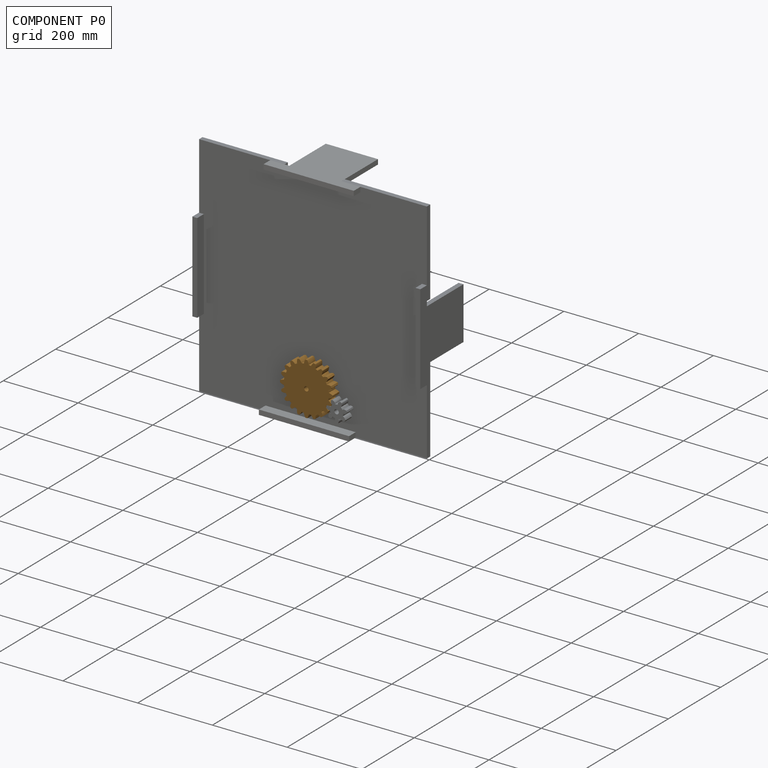
[diagram: component P0 — assembled]
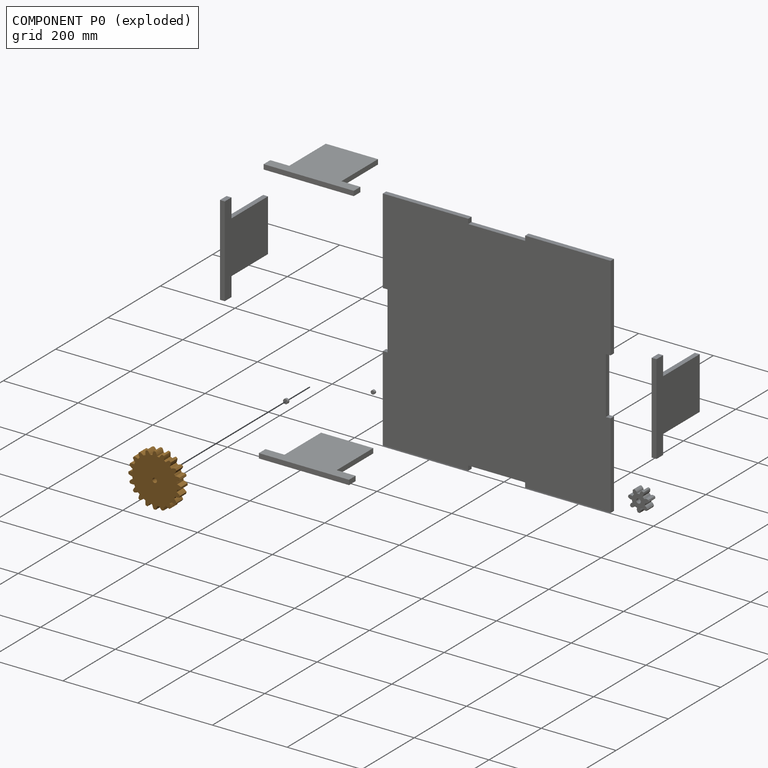
[diagram: component P0 — exploded]
COMPONENT P0 — geometry summary (no construction recipe available for this part):
  bounding box: 140.7 x 140.7 x 25.4 mm
  B-rep topology: 1 solid, 864 faces, 5172 edges
  volume: 336865 mm^3 (67% of its bounding box)
  symmetry: 2-fold rotationally symmetric about the x axis; 4-fold rotationally symmetric about the y axis; 2-fold rotationally symmetric about the z axis; mirror-symmetric across its x mid-plane, y mid-plane, z mid-plane
Held by: PLANAR mate "Planar 5" to P4.
PROVENANCE & LICENSES
Assembly (occurrences, transforms, mates, per-part STEP geometry): AutoMate dataset, Zenodo record 7776208, CC0.
Construction recipes: CADFS (HuggingFace VladPyatov/CADFS, CC-BY-4.0, layered over the ABC dataset), FeatureScript reconstruction programs keyed by ABC model id.
Join: ABC meta listings map ABC model id -> Onshape documentId; within a shared document, parts are matched by geometric signature (bounding-box dims + volume at 0.1% relative tolerance, exact B-rep face/solid counts).
Verification: 1 of this assembly's 9 components carries a recipe attachment, and every attachment is mesh-verified: the CADFS STEP and the AutoMate member STEP were compared as meshes in their shared local frame (symmetric sampled-point-to-mesh distance); worst across the 1 attachment: below the mesh-comparison resolution (tessellation chordal tolerance ~0.122 mm) on a 81 mm part.
Renders: orthographic iso camera (az 35 / el 25); the floor grid conveys scale (grid pitch printed in each image; no ruler). In the exploded view each component is displaced by its stored offset vector: the offsets alone carry the explosion direction (mate normal/axis signs are not orientation cues and do not encode it), and separation distances are assigned per mate-chain, not proportionally to assembly-order depth.
